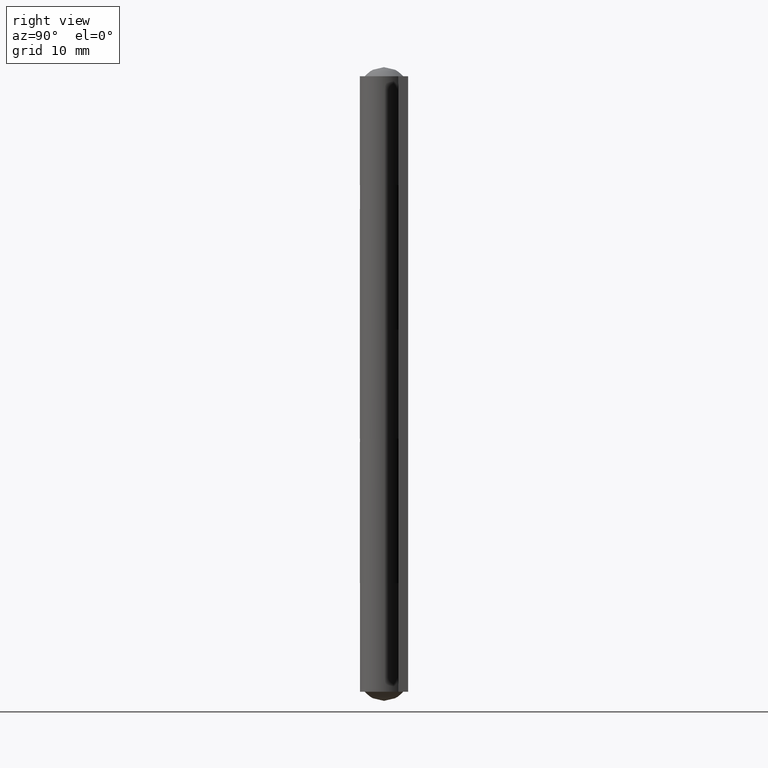
[diagram: clean part render]
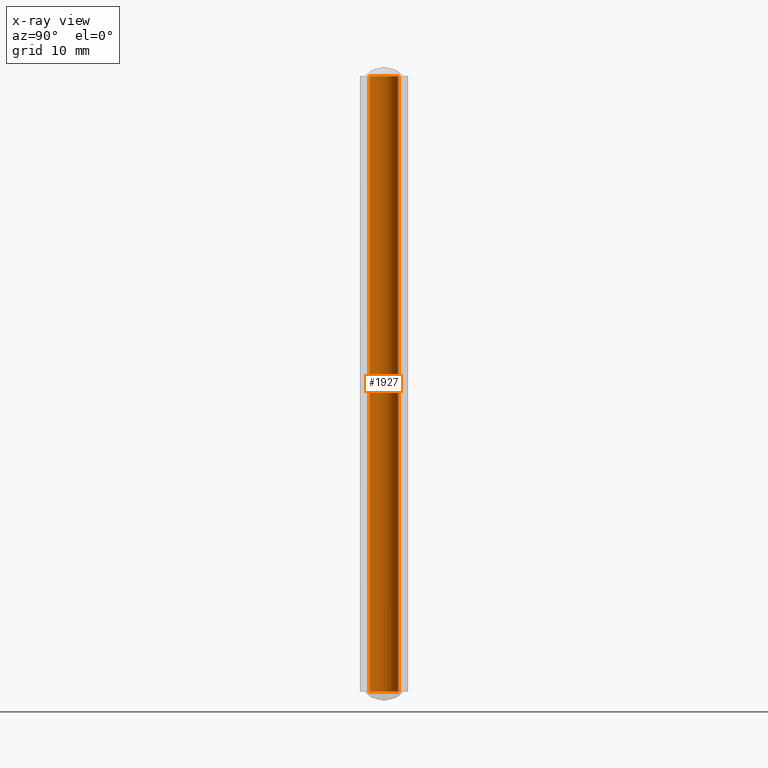
[diagram: x-ray — body ghosted, one internal face saturated and labeled with its STEP entity id]
A machine part, right view, then the same camera in x-ray: the body is ghosted and one INTERNAL B-rep face — a face not visible from any outside direction — is saturated and labeled: STEP entity #1927.
In plain terms, the highlighted face is a freeform B-spline surface patch.
Its self-contained STEP definition (entity closure, byte-faithful):
#1794=CARTESIAN_POINT('',(1.199996999999982,0.0,0.0));
#1795=VERTEX_POINT('',#1794);
#1796=CARTESIAN_POINT('',(0.073258064602606,-1.197758763683087,1.110223E-015));
#1797=VERTEX_POINT('',#1796);
#1798=CARTESIAN_POINT('',(1.199996999999982,0.0,0.0));
#1799=CARTESIAN_POINT('',(1.199996999999982,-1.128844457879308,0.0));
#1800=CARTESIAN_POINT('',(0.073258064602606,-1.197758763683087,0.0));
#1808=(BOUNDED_CURVE()B_SPLINE_CURVE(2,(#1798,#1799,#1800),.UNSPECIFIED.,.F.,.U.)B_SPLINE_CURVE_WITH_KNOTS((3,3),(0.500000000000000,0.739332962197829),.UNSPECIFIED.)CURVE()GEOMETRIC_REPRESENTATION_ITEM()RATIONAL_B_SPLINE_CURVE((1.0,0.719603993334878,0.976072041578604))REPRESENTATION_ITEM(''));
#1809=EDGE_CURVE('',#1795,#1797,#1808,.T.);
#1828=CARTESIAN_POINT('',(-0.073258064602606,1.197758763683087,1.110223E-015));
#1829=VERTEX_POINT('',#1828);
#1843=CARTESIAN_POINT('',(-0.073258064602606,1.197758763683087,0.0));
#1844=CARTESIAN_POINT('',(-0.036663224453644,1.199996999999981,0.0));
#1845=CARTESIAN_POINT('',(0.0,1.199996999999982,0.0));
#1846=CARTESIAN_POINT('',(1.199996999999982,1.199996999999982,0.0));
#1847=CARTESIAN_POINT('',(1.199996999999982,0.0,0.0));
#1855=(BOUNDED_CURVE()B_SPLINE_CURVE(2,(#1843,#1844,#1845,#1846,#1847),.UNSPECIFIED.,.F.,.U.)B_SPLINE_CURVE_WITH_KNOTS((3,2,3),(0.239332962197829,0.250000000000000,0.500000000000000),.UNSPECIFIED.)CURVE()GEOMETRIC_REPRESENTATION_ITEM()RATIONAL_B_SPLINE_CURVE((0.976072041578604,0.987502787851670,1.0,0.707106781186547,1.0))REPRESENTATION_ITEM(''));
#1856=EDGE_CURVE('',#1829,#1795,#1855,.T.);
#1861=CARTESIAN_POINT('',(-0.073258064296209,1.197758763701827,52.275000000000013));
#1862=CARTESIAN_POINT('',(1.124500699405618,1.271016827998035,52.275000000000013));
#1863=CARTESIAN_POINT('',(1.197758763701827,0.073258064296209,52.275000000000013));
#1864=CARTESIAN_POINT('',(1.271016827998035,-1.124500699405618,52.275000000000013));
#1865=CARTESIAN_POINT('',(0.073258064296209,-1.197758763701827,52.275000000000013));
#1866=CARTESIAN_POINT('',(-0.073258064296209,1.197758763701827,-1.306875000000005));
#1867=CARTESIAN_POINT('',(1.124500699405618,1.271016827998035,-1.306875000000005));
#1868=CARTESIAN_POINT('',(1.197758763701827,0.073258064296209,-1.306875000000005));
#1869=CARTESIAN_POINT('',(1.271016827998035,-1.124500699405618,-1.306875000000005));
#1870=CARTESIAN_POINT('',(0.073258064296209,-1.197758763701827,-1.306875000000005));
#1878=(BOUNDED_SURFACE()B_SPLINE_SURFACE(2,1,((#1861,#1866),(#1862,#1867),(#1863,#1868),(#1864,#1869),(#1865,#1870)),.UNSPECIFIED.,.F.,.F.,.U.)B_SPLINE_SURFACE_WITH_KNOTS((3,2,3),(2,2),(3.141592653589793,4.712388980384690,6.283185307179586),(0.0,53.581875000000011),.UNSPECIFIED.)GEOMETRIC_REPRESENTATION_ITEM()RATIONAL_B_SPLINE_SURFACE(((1.0,1.0),(0.707106781186548,0.707106781186548),(1.0,1.0),(0.707106781186548,0.707106781186548),(1.0,1.0)))REPRESENTATION_ITEM('')SURFACE());
#1879=ORIENTED_EDGE('',*,*,#1856,.F.);
#1880=CARTESIAN_POINT('',(-0.073258064602606,1.197758763683087,51.0));
#1881=VERTEX_POINT('',#1880);
#1882=CARTESIAN_POINT('',(-0.073258064602606,1.197758763683087,51.0));
#1883=CARTESIAN_POINT('',(-0.073258064602606,1.197758763683087,1.110223E-015));
#1884=QUASI_UNIFORM_CURVE('',1,(#1882,#1883),.UNSPECIFIED.,.F.,.U.);
#1885=EDGE_CURVE('',#1881,#1829,#1884,.T.);
#1886=ORIENTED_EDGE('',*,*,#1885,.F.);
#1887=CARTESIAN_POINT('',(1.199996999999982,0.0,51.0));
#1888=VERTEX_POINT('',#1887);
#1889=CARTESIAN_POINT('',(-0.073258064602606,1.197758763683087,51.0));
#1890=CARTESIAN_POINT('',(-0.036663224453644,1.199996999999982,51.0));
#1891=CARTESIAN_POINT('',(0.0,1.199996999999982,51.0));
#1892=CARTESIAN_POINT('',(1.199996999999982,1.199996999999982,50.999999999999993));
#1893=CARTESIAN_POINT('',(1.199996999999982,0.0,51.0));
#1901=(BOUNDED_CURVE()B_SPLINE_CURVE(2,(#1889,#1890,#1891,#1892,#1893),.UNSPECIFIED.,.F.,.U.)B_SPLINE_CURVE_WITH_KNOTS((3,2,3),(0.239332962197829,0.250000000000000,0.500000000000000),.UNSPECIFIED.)CURVE()GEOMETRIC_REPRESENTATION_ITEM()RATIONAL_B_SPLINE_CURVE((0.976072041578604,0.987502787851670,1.0,0.707106781186547,1.0))REPRESENTATION_ITEM(''));
#1902=EDGE_CURVE('',#1881,#1888,#1901,.T.);
#1903=ORIENTED_EDGE('',*,*,#1902,.T.);
#1904=CARTESIAN_POINT('',(0.073258064602606,-1.197758763683087,51.0));
#1905=VERTEX_POINT('',#1904);
#1906=CARTESIAN_POINT('',(1.199996999999982,0.0,51.0));
#1907=CARTESIAN_POINT('',(1.199996999999982,-1.128844457879308,50.999999999999993));
#1908=CARTESIAN_POINT('',(0.073258064602606,-1.197758763683087,50.999999999999993));
#1916=(BOUNDED_CURVE()B_SPLINE_CURVE(2,(#1906,#1907,#1908),.UNSPECIFIED.,.F.,.U.)B_SPLINE_CURVE_WITH_KNOTS((3,3),(0.500000000000000,0.739332962197829),.UNSPECIFIED.)CURVE()GEOMETRIC_REPRESENTATION_ITEM()RATIONAL_B_SPLINE_CURVE((1.0,0.719603993334878,0.976072041578604))REPRESENTATION_ITEM(''));
#1917=EDGE_CURVE('',#1888,#1905,#1916,.T.);
#1918=ORIENTED_EDGE('',*,*,#1917,.T.);
#1919=CARTESIAN_POINT('',(0.073258064602606,-1.197758763683087,51.0));
#1920=CARTESIAN_POINT('',(0.073258064602606,-1.197758763683087,1.110223E-015));
#1921=QUASI_UNIFORM_CURVE('',1,(#1919,#1920),.UNSPECIFIED.,.F.,.U.);
#1922=EDGE_CURVE('',#1905,#1797,#1921,.T.);
#1923=ORIENTED_EDGE('',*,*,#1922,.T.);
#1924=ORIENTED_EDGE('',*,*,#1809,.F.);
#1925=EDGE_LOOP('',(#1879,#1886,#1903,#1918,#1923,#1924));
#1926=FACE_OUTER_BOUND('',#1925,.T.);
#1927=ADVANCED_FACE('',(#1926),#1878,.T.);